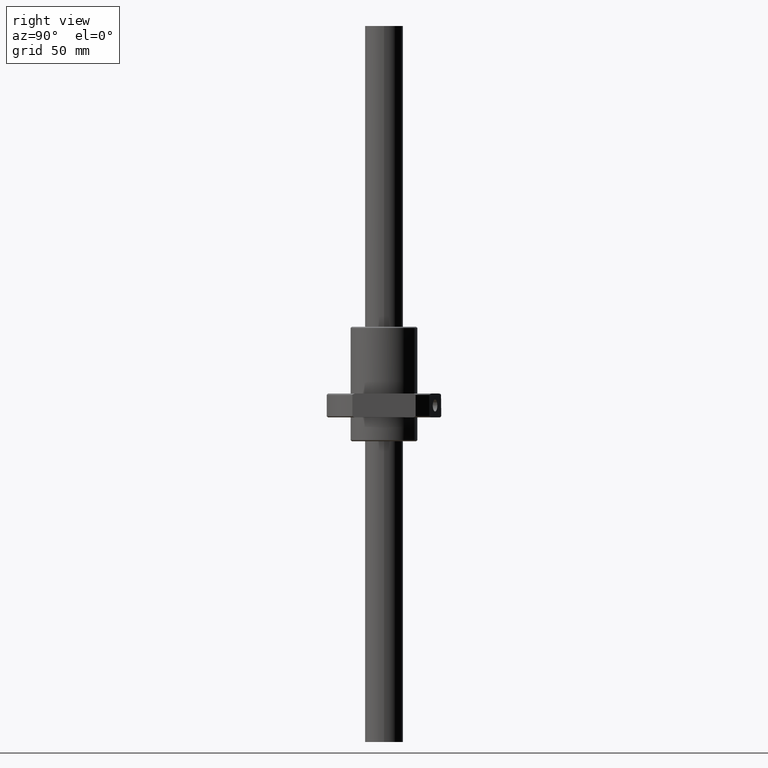
[diagram: clean part render]
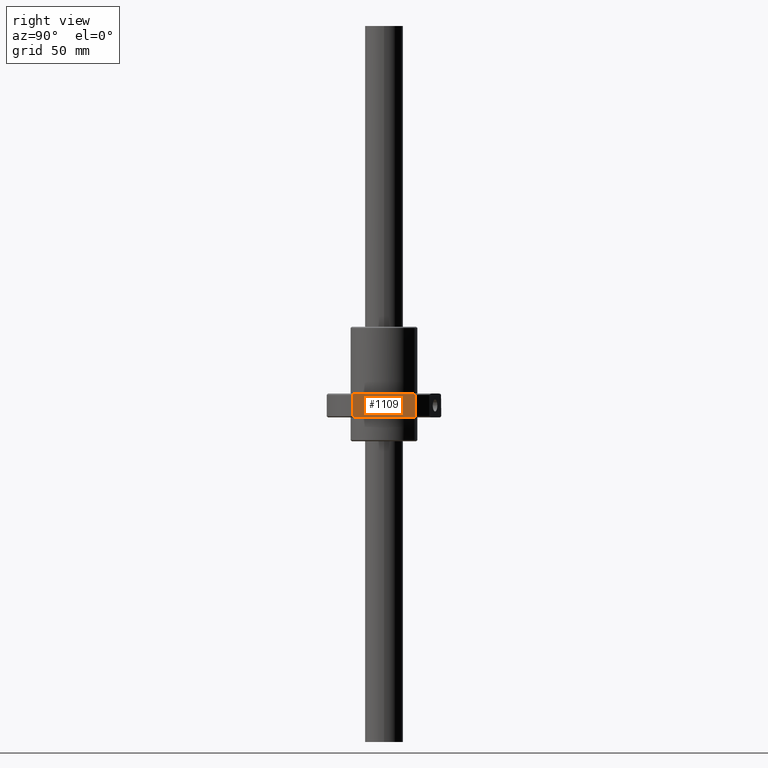
[diagram: same view with one face highlighted and labeled with its STEP entity id]
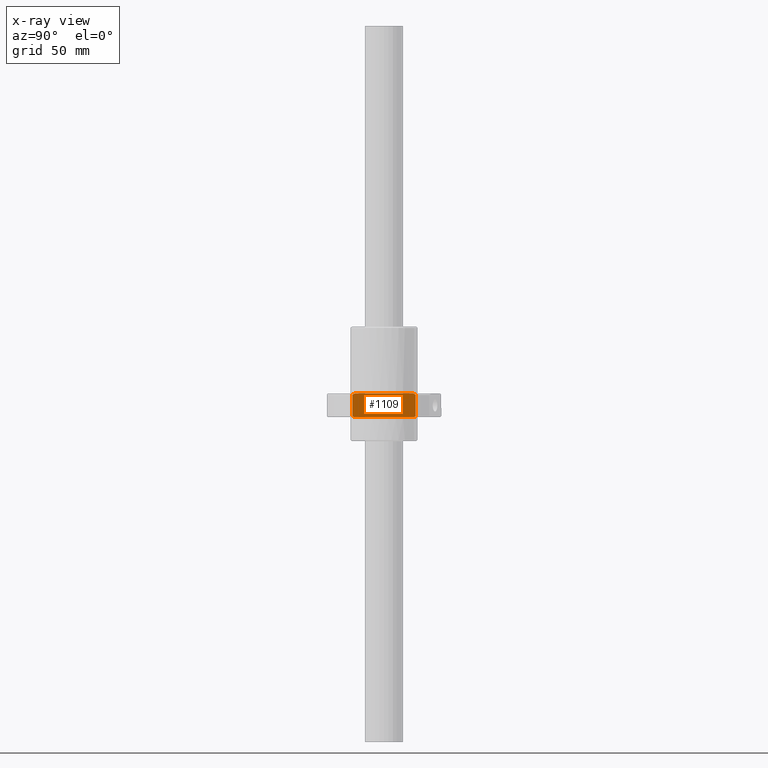
[diagram: x-ray of the same camera — body ghosted, the highlighted face saturated]
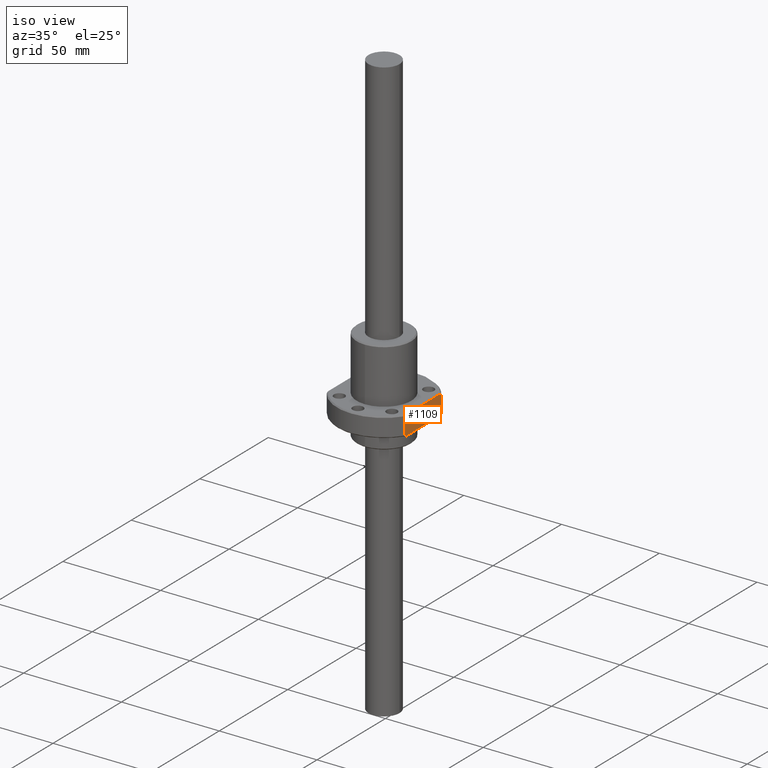
[diagram: same view with one face highlighted and labeled with its STEP entity id]
A machine part, right view. The second image highlights one B-rep face of the part: STEP entity #1109.
The next image is the same camera in x-ray: the body ghosted, the highlighted face saturated — about 0% of this face is hidden behind the body in this view.
A second angle (iso view) of the same face is appended — the face is thin or edge-on in the first view.
In plain terms, the highlighted planar face has unit normal (1, 0, 0).
Its self-contained STEP definition (entity closure, byte-faithful):
#2 = CARTESIAN_POINT ( 'NONE',  ( -20.00000000000000000, 12.64996012032849000, -10.16329301361725600 ) ) ;
#12 = B_SPLINE_CURVE_WITH_KNOTS ( 'NONE', 3,
 ( #161, #882, #493, #1395 ),
 .UNSPECIFIED., .F., .F.,
 ( 4, 4 ),
 ( 0.0000000000000000000, 0.001053719083737561400 ),
 .UNSPECIFIED. ) ;
#44 = EDGE_LOOP ( 'NONE', ( #1160, #445, #756, #1801, #1119, #1610, #719, #1893 ) ) ;
#51 = CARTESIAN_POINT ( 'NONE',  ( -20.00000000000000000, 0.0000000000000000000, -10.00000000000000000 ) ) ;
#100 = VERTEX_POINT ( 'NONE', #877 ) ;
#102 = CARTESIAN_POINT ( 'NONE',  ( -20.00000000000000000, 13.26649916100000000, -20.00000000000000000 ) ) ;
#161 = CARTESIAN_POINT ( 'NONE',  ( -19.99999999912014900, 13.26649916346964800, -19.49999999960110800 ) ) ;
#177 = FACE_OUTER_BOUND ( 'NONE', #44, .T. ) ;
#180 = CARTESIAN_POINT ( 'NONE',  ( -19.99999999824029800, 13.26649916407445000, -15.00000000000000000 ) ) ;
#195 = CARTESIAN_POINT ( 'NONE',  ( -20.00000000043123200, -12.95908056705330800, -10.33006797791303700 ) ) ;
#243 = B_SPLINE_CURVE_WITH_KNOTS ( 'NONE', 3,
 ( #839, #2, #1564, #1001 ),
 .UNSPECIFIED., .F., .F.,
 ( 4, 4 ),
 ( 0.0000000000000000000, 0.001053719085321669300 ),
 .UNSPECIFIED. ) ;
#252 = DIRECTION ( 'NONE',  ( 0.0000000000000000000, 1.000000000000000000, 0.0000000000000000000 ) ) ;
#279 = DIRECTION ( 'NONE',  ( -0.0000000000000000000, -0.0000000000000000000, -1.000000000000000000 ) ) ;
#300 = DIRECTION ( 'NONE',  ( -1.000000000000000000, 0.0000000000000000000, 0.0000000000000000000 ) ) ;
#445 = ORIENTED_EDGE ( 'NONE', *, *, #1124, .T. ) ;
#446 = CARTESIAN_POINT ( 'NONE',  ( -20.00000000000000000, -12.33896268425371500, -19.99999999737434600 ) ) ;
#491 = DIRECTION ( 'NONE',  ( 0.0000000000000000000, -1.000000000000000000, 0.0000000000000000000 ) ) ;
#493 = CARTESIAN_POINT ( 'NONE',  ( -20.00000000000000000, 12.64996012353116100, -19.83670698466581700 ) ) ;
#533 = DIRECTION ( 'NONE',  ( 0.0000000000000000000, 1.000000000000000000, 0.0000000000000000000 ) ) ;
#570 = AXIS2_PLACEMENT_3D ( 'NONE', #102, #300, #491 ) ;
#571 = LINE ( 'NONE', #180, #622 ) ;
#590 = EDGE_CURVE ( 'NONE', #1072, #1926, #1344, .T. ) ;
#622 = VECTOR ( 'NONE', #279, 1000.000000000000000 ) ;
#647 = CARTESIAN_POINT ( 'NONE',  ( -20.00000000162474500, -12.64996012384579800, -19.83670698541349600 ) ) ;
#671 = VERTEX_POINT ( 'NONE', #1453 ) ;
#719 = ORIENTED_EDGE ( 'NONE', *, *, #1652, .T. ) ;
#756 = ORIENTED_EDGE ( 'NONE', *, *, #1799, .T. ) ;
#777 = CARTESIAN_POINT ( 'NONE',  ( -20.00000000000000000, -12.64996012268421800, -10.16329301489064100 ) ) ;
#836 = CARTESIAN_POINT ( 'NONE',  ( -20.00000000000000000, -12.95908056777990300, -19.66993202144429600 ) ) ;
#839 = CARTESIAN_POINT ( 'NONE',  ( -20.00000000000000000, 12.33896268198939000, -10.00000000143674200 ) ) ;
#877 = CARTESIAN_POINT ( 'NONE',  ( -19.99999999912014900, 13.26649916234025600, -10.49999999977459800 ) ) ;
#879 = LINE ( 'NONE', #1089, #1632 ) ;
#882 = CARTESIAN_POINT ( 'NONE',  ( -20.00000000000000000, 12.95908056875204100, -19.66993202092350800 ) ) ;
#921 = CARTESIAN_POINT ( 'NONE',  ( -20.00000000000000000, -12.33896268425371500, -19.99999999737434600 ) ) ;
#962 = EDGE_CURVE ( 'NONE', #100, #1917, #571, .T. ) ;
#988 = CARTESIAN_POINT ( 'NONE',  ( -20.00000000000000000, -12.33896268389215600, -10.00000000243581200 ) ) ;
#1001 = CARTESIAN_POINT ( 'NONE',  ( -19.99999999912014900, 13.26649916234025600, -10.49999999977459800 ) ) ;
#1042 = CARTESIAN_POINT ( 'NONE',  ( -20.00000000000000000, -13.26649916121060500, -19.50000000011666800 ) ) ;
#1072 = VERTEX_POINT ( 'NONE', #921 ) ;
#1089 = CARTESIAN_POINT ( 'NONE',  ( -20.00000000000000000, -13.26649916100000000, -15.00000000000000000 ) ) ;
#1090 = EDGE_CURVE ( 'NONE', #1826, #671, #1807, .T. ) ;
#1097 = EDGE_CURVE ( 'NONE', #1072, #1366, #1604, .T. ) ;
#1109 = ADVANCED_FACE ( 'NONE', ( #177 ), #1247, .T. ) ;
#1119 = ORIENTED_EDGE ( 'NONE', *, *, #1575, .T. ) ;
#1124 = EDGE_CURVE ( 'NONE', #1366, #1673, #879, .T. ) ;
#1160 = ORIENTED_EDGE ( 'NONE', *, *, #1097, .T. ) ;
#1185 = CARTESIAN_POINT ( 'NONE',  ( -20.00000000000000000, -13.26649916121079900, -10.49999999988345300 ) ) ;
#1247 = PLANE ( 'NONE',  #570 ) ;
#1344 = LINE ( 'NONE', #1495, #1943 ) ;
#1366 = VERTEX_POINT ( 'NONE', #1777 ) ;
#1370 = VECTOR ( 'NONE', #252, 1000.000000000000000 ) ;
#1395 = CARTESIAN_POINT ( 'NONE',  ( -20.00000000000000000, 12.33896267925304900, -20.00000000000001100 ) ) ;
#1442 = CARTESIAN_POINT ( 'NONE',  ( -19.99999999912014900, 13.26649916346964800, -19.49999999960110800 ) ) ;
#1453 = CARTESIAN_POINT ( 'NONE',  ( -20.00000000000000000, 12.33896268198939000, -10.00000000143674200 ) ) ;
#1495 = CARTESIAN_POINT ( 'NONE',  ( -20.00000000000000000, 0.0000000000000000000, -20.00000000000000000 ) ) ;
#1564 = CARTESIAN_POINT ( 'NONE',  ( -20.00000000000000000, 12.95908056602538700, -10.33006797758934200 ) ) ;
#1575 = EDGE_CURVE ( 'NONE', #671, #100, #243, .T. ) ;
#1589 = CARTESIAN_POINT ( 'NONE',  ( -20.00000000000000000, -12.33896268389215600, -10.00000000243581200 ) ) ;
#1604 = B_SPLINE_CURVE_WITH_KNOTS ( 'NONE', 3,
 ( #446, #647, #836, #1042 ),
 .UNSPECIFIED., .F., .F.,
 ( 4, 4 ),
 ( 0.0000000000000000000, 0.001053719080662772100 ),
 .UNSPECIFIED. ) ;
#1610 = ORIENTED_EDGE ( 'NONE', *, *, #962, .T. ) ;
#1632 = VECTOR ( 'NONE', #1699, 1000.000000000000000 ) ;
#1652 = EDGE_CURVE ( 'NONE', #1917, #1926, #12, .T. ) ;
#1667 = B_SPLINE_CURVE_WITH_KNOTS ( 'NONE', 3,
 ( #1950, #195, #777, #988 ),
 .UNSPECIFIED., .F., .F.,
 ( 4, 4 ),
 ( 0.0000000000000000000, 0.001053719080463287800 ),
 .UNSPECIFIED. ) ;
#1673 = VERTEX_POINT ( 'NONE', #1185 ) ;
#1699 = DIRECTION ( 'NONE',  ( 0.0000000000000000000, 0.0000000000000000000, 1.000000000000000000 ) ) ;
#1777 = CARTESIAN_POINT ( 'NONE',  ( -20.00000000000000000, -13.26649916121060500, -19.50000000011666800 ) ) ;
#1788 = CARTESIAN_POINT ( 'NONE',  ( -20.00000000000000000, 12.33896267925304900, -20.00000000000001100 ) ) ;
#1799 = EDGE_CURVE ( 'NONE', #1673, #1826, #1667, .T. ) ;
#1801 = ORIENTED_EDGE ( 'NONE', *, *, #1090, .T. ) ;
#1807 = LINE ( 'NONE', #51, #1370 ) ;
#1826 = VERTEX_POINT ( 'NONE', #1589 ) ;
#1893 = ORIENTED_EDGE ( 'NONE', *, *, #590, .F. ) ;
#1917 = VERTEX_POINT ( 'NONE', #1442 ) ;
#1926 = VERTEX_POINT ( 'NONE', #1788 ) ;
#1943 = VECTOR ( 'NONE', #533, 1000.000000000000000 ) ;
#1950 = CARTESIAN_POINT ( 'NONE',  ( -20.00000000000000000, -13.26649916121079900, -10.49999999988345300 ) ) ;